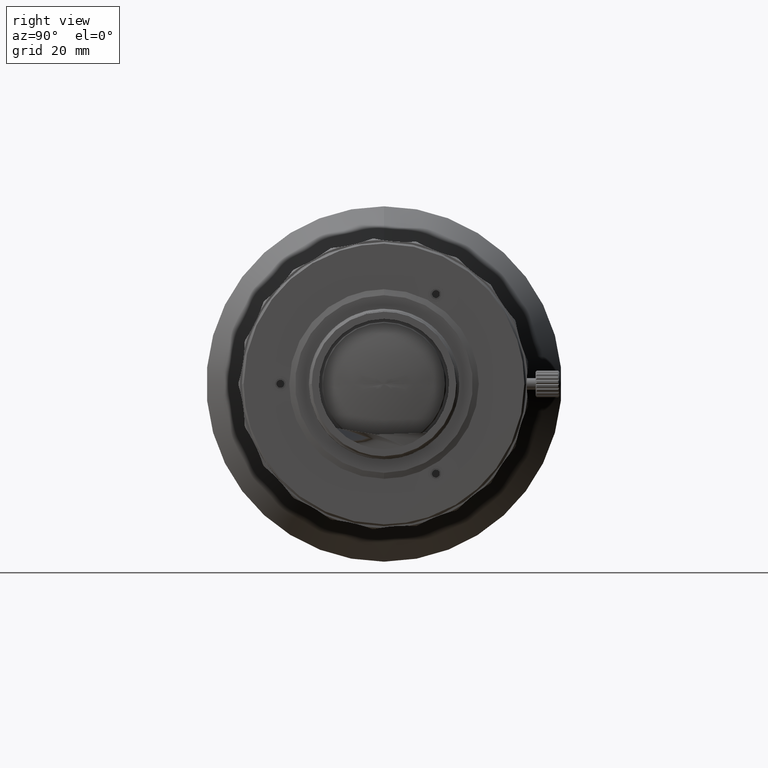
[diagram: clean part render]
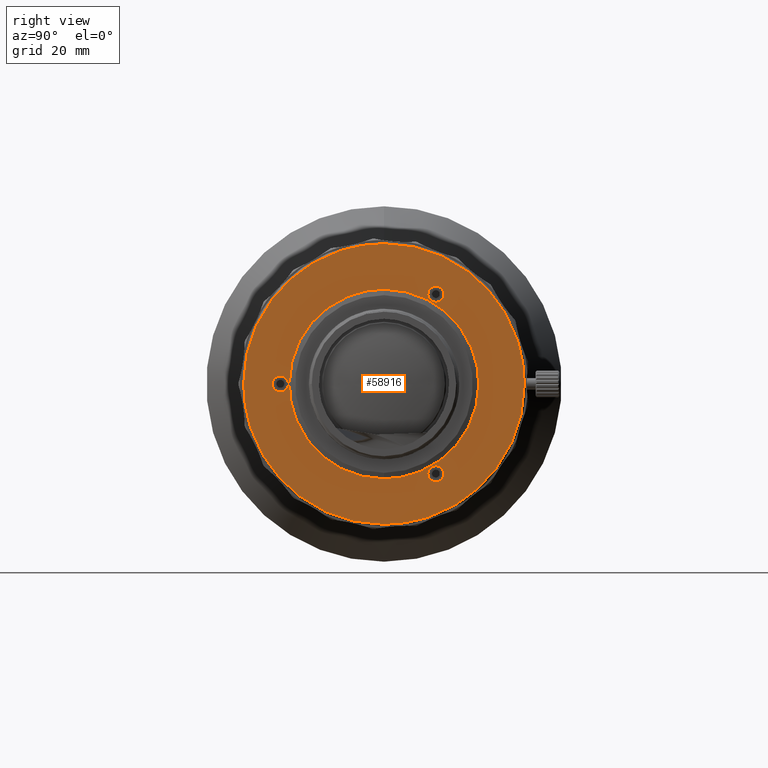
[diagram: same view with one face highlighted and labeled with its STEP entity id]
A machine part, right view. The second image highlights one B-rep face of the part: STEP entity #58916.
In plain terms, the highlighted planar face has unit normal (1, 0, 0).
Its self-contained STEP definition (entity closure, byte-faithful):
#1 = CARTESIAN_POINT ( 'NONE',  ( 76.64069999999998117, 10.09999999999999787, -15.33215915299442678 ) ) ;
#79 = VERTEX_POINT ( 'NONE', #9071 ) ;
#129 = B_SPLINE_CURVE_WITH_KNOTS ( 'NONE', 3,
 ( #59326, #70708, #45392, #12675, #72004, #64586, #37553, #65878, #57593, #17940, #17504, #65457, #25326, #52351, #84632, #84199, #52770, #51052 ),
 .UNSPECIFIED., .F., .F.,
 ( 4, 2, 2, 2, 2, 2, 2, 2, 4 ),
 ( 0.000000000000000000, 0.1250000000000000278, 0.2500000000000000555, 0.3750000000000000000, 0.5000000000000000000, 0.6250000000000000000, 0.7499999999999998890, 0.8750000000000000000, 1.000000000000000000 ),
 .UNSPECIFIED. ) ;
#142 = FACE_OUTER_BOUND ( 'NONE', #11237, .T. ) ;
#283 = CARTESIAN_POINT ( 'NONE',  ( 76.64069999999998117, 9.429885623500716463, 13.97583294195174730 ) ) ;
#284 = CARTESIAN_POINT ( 'NONE',  ( 76.64069999999999538, 8.396640356114975390, 13.84058145272777196 ) ) ;
#436 = EDGE_CURVE ( 'NONE', #75324, #79, #27833, .T. ) ;
#514 = CARTESIAN_POINT ( 'NONE',  ( 76.64069962050291451, 1.551161236633410878, -23.69999792081300782 ) ) ;
#707 = CARTESIAN_POINT ( 'NONE',  ( 76.64070000000000960, 10.06486311350223239, 14.80208492234497619 ) ) ;
#845 = CARTESIAN_POINT ( 'NONE',  ( 76.64069999999999538, 9.579638071966133595, -14.07589432899245807 ) ) ;
#998 = CARTESIAN_POINT ( 'NONE',  ( 76.64069999999762217, -15.99999999999928590, -8.736585125177733838E-16 ) ) ;
#1233 = CARTESIAN_POINT ( 'NONE',  ( 76.64069999999996696, 7.920361928033863741, -14.07589432899245452 ) ) ;
#1328 = CARTESIAN_POINT ( 'NONE',  ( 76.64069999999999538, -2.091423351979704304, 15.89748536936434320 ) ) ;
#1976 = CARTESIAN_POINT ( 'NONE',  ( 76.64069999999996696, 9.429885623500712910, 16.33505619050824365 ) ) ;
#2088 = CARTESIAN_POINT ( 'NONE',  ( 76.64069962050292872, 20.56760709237993723, 11.87726993555570587 ) ) ;
#2517 = CARTESIAN_POINT ( 'NONE',  ( 76.64069962050291451, 11.87726993518950636, 20.56760709259135567 ) ) ;
#2860 = CARTESIAN_POINT ( 'NONE',  ( 76.64069999999998117, 7.093187056990378103, -14.38014184987940425 ) ) ;
#3126 = CARTESIAN_POINT ( 'NONE',  ( 76.64069977230175823, 9.076041367984843545E-13, -23.69999792081178924 ) ) ;
#3349 = B_SPLINE_CURVE_WITH_KNOTS ( 'NONE', 3,
 ( #5821, #85589, #72958, #25865, #80329, #6249, #66406, #32845, #20611, #54146, #59435, #52459, #6658, #7078, #86015, #79481, #79053, #19760 ),
 .UNSPECIFIED., .F., .F.,
 ( 4, 2, 2, 2, 2, 2, 2, 2, 4 ),
 ( 0.000000000000000000, 0.06249999999999994449, 0.1249999999999998890, 0.1874999999999998890, 0.2499999999999998890, 0.3124999999999998890, 0.3749999999999998890, 0.4374999999999999445, 0.5000000000000000000 ),
 .UNSPECIFIED. ) ;
#3497 = ORIENTED_EDGE ( 'NONE', *, *, #5792, .F. ) ;
#3623 = VERTEX_POINT ( 'NONE', #72558 ) ;
#4117 = CARTESIAN_POINT ( 'NONE',  ( 76.64069999999998117, -16.32038837572175893, -0.6798856235007142423 ) ) ;
#4346 = B_SPLINE_CURVE_WITH_KNOTS ( 'NONE', 3,
 ( #6055, #67494, #66224, #60958, #1233, #19994, #7752, #46584, #73186, #13861, #59247, #53523, #34355, #13436, #80995, #21273, #40040, #72345 ),
 .UNSPECIFIED., .F., .F.,
 ( 4, 2, 2, 2, 2, 2, 2, 2, 4 ),
 ( 0.000000000000000000, 0.1249999999999992506, 0.2499999999999985012, 0.3749999999999981681, 0.4999999999999978906, 0.6249999999999975575, 0.7499999999999983347, 0.8749999999999992228, 1.000000000000000000 ),
 .UNSPECIFIED. ) ;
#4696 = CARTESIAN_POINT ( 'NONE',  ( 76.64069962050297136, -11.87726993554476884, 20.56760709238527696 ) ) ;
#4728 = EDGE_LOOP ( 'NONE', ( #61121, #44998 ) ) ;
#5199 = B_SPLINE_CURVE_WITH_KNOTS ( 'NONE', 3,
 ( #7218, #46070, #65694, #5953, #12909, #66550, #7644, #79614, #19046, #45638, #32558, #52597, #59150, #79189, #59995, #284, #26871, #56003 ),
 .UNSPECIFIED., .F., .F.,
 ( 4, 2, 2, 2, 2, 2, 2, 2, 4 ),
 ( 0.000000000000000000, 0.1250000000000000000, 0.2500000000000000000, 0.3750000000000000000, 0.5000000000000000000, 0.6250000000000000000, 0.7500000000000000000, 0.8750000000000000000, 1.000000000000000000 ),
 .UNSPECIFIED. ) ;
#5792 = EDGE_CURVE ( 'NONE', #60762, #20796, #29858, .T. ) ;
#5821 = CARTESIAN_POINT ( 'NONE',  ( 76.64069977230175823, 9.076041367984843545E-13, -23.69999792081178924 ) ) ;
#5953 = CARTESIAN_POINT ( 'NONE',  ( 76.64069999999996696, 8.070114376499281761, 16.33505619050824365 ) ) ;
#5981 = CARTESIAN_POINT ( 'NONE',  ( 76.64069962050299978, -6.144996334755992606, 22.94199256111746266 ) ) ;
#6055 = CARTESIAN_POINT ( 'NONE',  ( 76.64069999999998117, 8.750000000000000000, -13.80544456623000293 ) ) ;
#6249 = CARTESIAN_POINT ( 'NONE',  ( 76.64069962050297136, -10.50268266949943197, -21.30233929342817589 ) ) ;
#6518 = CARTESIAN_POINT ( 'NONE',  ( 76.64069999999996696, 9.579638071966133595, -16.23499480346753643 ) ) ;
#6559 = CARTESIAN_POINT ( 'NONE',  ( 76.64069999999996696, 4.151481038392139666, 15.48771441802423787 ) ) ;
#6658 = CARTESIAN_POINT ( 'NONE',  ( 76.64069962050299978, -21.30233929338141863, -10.50268266959415975 ) ) ;
#6987 = CARTESIAN_POINT ( 'NONE',  ( 76.64069999999996696, 7.093214687431535381, 14.38020855566372269 ) ) ;
#7025 = CARTESIAN_POINT ( 'NONE',  ( 76.64069962050291451, 10.50268266956430452, -21.30233929339708254 ) ) ;
#7078 = CARTESIAN_POINT ( 'NONE',  ( 76.64069962050298557, -22.48954670575617598, -7.636510433316167301 ) ) ;
#7218 = CARTESIAN_POINT ( 'NONE',  ( 76.64069999999998117, 8.750000000000000000, 16.50544456623000045 ) ) ;
#7455 = CARTESIAN_POINT ( 'NONE',  ( 76.64069962050291451, 11.87726993543372167, -20.56760709245044083 ) ) ;
#7516 = CARTESIAN_POINT ( 'NONE',  ( 76.64069999999998117, -10.57107356031753120, -12.05629238325672503 ) ) ;
#7644 = CARTESIAN_POINT ( 'NONE',  ( 76.64069999999998117, 7.570388375721750052, 15.83533018973071549 ) ) ;
#7752 = CARTESIAN_POINT ( 'NONE',  ( 76.64069999999998117, 7.570388375721755381, -14.47555894272928434 ) ) ;
#8693 = CARTESIAN_POINT ( 'NONE',  ( 76.64069999999999538, 12.72001930939987879, 9.762319960774968663 ) ) ;
#9071 = CARTESIAN_POINT ( 'NONE',  ( 76.64069999999800586, 2.714440915294617282E-15, -15.99999999999882050 ) ) ;
#9402 = CARTESIAN_POINT ( 'NONE',  ( 76.64069999999998117, 15.18393648469977286, -5.152655148239585259 ) ) ;
#9782 = CARTESIAN_POINT ( 'NONE',  ( 76.64069999999999538, -16.32038837572176249, 0.6798856235007141313 ) ) ;
#9831 = CARTESIAN_POINT ( 'NONE',  ( 76.64069999999998117, 8.015927495828213623, -13.88700828429151102 ) ) ;
#10665 = B_SPLINE_CURVE_WITH_KNOTS ( 'NONE', 3,
 ( #33832, #80043, #78768, #283, #26870, #20322, #60429, #707, #19045, #45637, #72242, #12481, #39091, #65693, #1976, #27731, #14187, #29432 ),
 .UNSPECIFIED., .F., .F.,
 ( 4, 2, 2, 2, 2, 2, 2, 2, 4 ),
 ( 0.000000000000000000, 0.1249999999999995837, 0.2499999999999991673, 0.3749999999999987788, 0.4999999999999983347, 0.6249999999999978906, 0.7499999999999985567, 0.8749999999999993339, 1.000000000000000000 ),
 .UNSPECIFIED. ) ;
#10780 = CARTESIAN_POINT ( 'NONE',  ( 76.64069962050288609, 14.45675679929066604, 18.84404907324151068 ) ) ;
#11092 = CARTESIAN_POINT ( 'NONE',  ( 76.64069999999999538, -16.42044976276246260, -0.8296380719661353709 ) ) ;
#11234 = CARTESIAN_POINT ( 'NONE',  ( 76.64069962050298557, -23.54722565148761859, 3.102284117623219206 ) ) ;
#11237 = EDGE_LOOP ( 'NONE', ( #43522, #52343, #79739, #3497 ) ) ;
#11515 = CARTESIAN_POINT ( 'NONE',  ( 76.64069999999998117, -17.50000000000000000, -1.350000000000000533 ) ) ;
#12358 = CARTESIAN_POINT ( 'NONE',  ( 76.64069999999998117, -13.88700828429514900, -8.015927495826066007 ) ) ;
#12481 = CARTESIAN_POINT ( 'NONE',  ( 76.64069999999996696, 9.929611624278249948, 15.83533018973070838 ) ) ;
#12675 = CARTESIAN_POINT ( 'NONE',  ( 76.64069999999998117, -18.17988562350072357, 1.179611624278247950 ) ) ;
#12786 = CARTESIAN_POINT ( 'NONE',  ( 76.64069999999999538, -15.89752149548272619, -2.091241766337238239 ) ) ;
#12909 = CARTESIAN_POINT ( 'NONE',  ( 76.64069999999998117, 7.920361928033865517, 16.23499480346754709 ) ) ;
#12937 = CARTESIAN_POINT ( 'NONE',  ( 76.64069962050299978, -20.56760709254356456, 11.87726993527067698 ) ) ;
#13115 = CARTESIAN_POINT ( 'NONE',  ( 76.64069999999999538, -1.050208301228396923, 15.99996389908876715 ) ) ;
#13436 = CARTESIAN_POINT ( 'NONE',  ( 76.64069999999998117, 7.920361928033863741, -16.23499480346753998 ) ) ;
#13538 = CARTESIAN_POINT ( 'NONE',  ( 76.64069999999800586, -3.694158354612427470E-15, 15.99999999999882405 ) ) ;
#13564 = CARTESIAN_POINT ( 'NONE',  ( 76.64069962050291451, 15.66159261482982501, -17.85526587300462964 ) ) ;
#13626 = CARTESIAN_POINT ( 'NONE',  ( 76.64069999999998117, -15.48760747741834187, -4.151648538178417169 ) ) ;
#13861 = CARTESIAN_POINT ( 'NONE',  ( 76.64069999999999538, 7.400000000000003908, -15.33215915299442500 ) ) ;
#13964 = CARTESIAN_POINT ( 'NONE',  ( 76.64069999999998117, -12.05629238326843478, 10.57107356030746992 ) ) ;
#14187 = CARTESIAN_POINT ( 'NONE',  ( 76.64069999999996696, 8.926714586764427750, 16.50544456623000045 ) ) ;
#16751 = CARTESIAN_POINT ( 'NONE',  ( 76.64069999999999538, -16.15000000000000924, 0.1767145867644257240 ) ) ;
#17088 = EDGE_CURVE ( 'NONE', #46199, #75317, #49547, .T. ) ;
#17187 = CARTESIAN_POINT ( 'NONE',  ( 76.64069999999998117, -16.18513688649778715, 0.3533596438850282739 ) ) ;
#17354 = AXIS2_PLACEMENT_3D ( 'NONE', #53292, #79907, #53716 ) ;
#17504 = CARTESIAN_POINT ( 'NONE',  ( 76.64069999999998117, -18.81486311350223417, -0.3533596438850307164 ) ) ;
#17940 = CARTESIAN_POINT ( 'NONE',  ( 76.64069999999998117, -18.85000000000000853, -0.1767145867644281387 ) ) ;
#18912 = CARTESIAN_POINT ( 'NONE',  ( 76.64069999999996696, -4.151481038429954751, -15.48771441801406823 ) ) ;
#19045 = CARTESIAN_POINT ( 'NONE',  ( 76.64070000000000960, 10.10000000000000497, 14.97872997946557660 ) ) ;
#19046 = CARTESIAN_POINT ( 'NONE',  ( 76.64069999999998117, 7.399999999999999467, 15.33215915299442678 ) ) ;
#19307 = ORIENTED_EDGE ( 'NONE', *, *, #67775, .F. ) ;
#19491 = CARTESIAN_POINT ( 'NONE',  ( 76.64069962050298557, -15.66159261490288479, 17.85526587293934142 ) ) ;
#19658 = CARTESIAN_POINT ( 'NONE',  ( 76.64069999999800586, -3.694158354612427470E-15, 15.99999999999882405 ) ) ;
#19664 = B_SPLINE_CURVE_WITH_KNOTS ( 'NONE', 3,
 ( #73807, #79913, #79059, #18912, #20189, #67261, #72117, #46780, #7516, #60729, #59020, #12358, #38969, #73388, #13626, #12786, #27169, #998 ),
 .UNSPECIFIED., .F., .F.,
 ( 4, 2, 2, 2, 2, 2, 2, 2, 4 ),
 ( 0.5000000000000000000, 0.5625000000000000000, 0.6250000000000000000, 0.6875000000000000000, 0.7500000000000000000, 0.8125000000000000000, 0.8750000000000000000, 0.9375000000000000000, 1.000000000000000000 ),
 .UNSPECIFIED. ) ;
#19674 = CARTESIAN_POINT ( 'NONE',  ( 76.64069999999999538, -15.99999999999882405, 1.050389825370369179 ) ) ;
#19760 = CARTESIAN_POINT ( 'NONE',  ( 76.64069981025149048, -23.69999792081289769, -7.890749212146722254E-11 ) ) ;
#19994 = CARTESIAN_POINT ( 'NONE',  ( 76.64069999999998117, 7.670449762762458157, -14.32580649426386366 ) ) ;
#20131 = CARTESIAN_POINT ( 'NONE',  ( 76.64069962050291451, 22.94199256119874875, -6.144996334455904652 ) ) ;
#20189 = CARTESIAN_POINT ( 'NONE',  ( 76.64069999999996696, -5.152655148224465798, -15.18393648471151991 ) ) ;
#20322 = CARTESIAN_POINT ( 'NONE',  ( 76.64069999999998117, 9.829550237237544508, 14.32580649426386543 ) ) ;
#20611 = CARTESIAN_POINT ( 'NONE',  ( 76.64069962050298557, -15.66159261474425790, -17.85526587307859714 ) ) ;
#20760 = VERTEX_POINT ( 'NONE', #3126 ) ;
#20796 = VERTEX_POINT ( 'NONE', #56728 ) ;
#21273 = CARTESIAN_POINT ( 'NONE',  ( 76.64069999999996696, 8.396640356114973613, -16.47030767973221899 ) ) ;
#21640 = CARTESIAN_POINT ( 'NONE',  ( 76.64069999999996696, 4.151466952525894705, -15.48764360353342440 ) ) ;
#21842 = ORIENTED_EDGE ( 'NONE', *, *, #82345, .F. ) ;
#22224 = CARTESIAN_POINT ( 'NONE',  ( 76.64069999999998117, 15.18400319048754454, 5.152682778678371989 ) ) ;
#22564 = CARTESIAN_POINT ( 'NONE',  ( 76.64069962050291451, 23.54722565145358359, 3.102284117888121973 ) ) ;
#23353 = CARTESIAN_POINT ( 'NONE',  ( 76.64069999999996696, 9.762319960797753993, -12.72001930938797365 ) ) ;
#23691 = CARTESIAN_POINT ( 'NONE',  ( 76.64069999999998117, -17.50000000000000000, -1.350000000000000533 ) ) ;
#23725 = CARTESIAN_POINT ( 'NONE',  ( 76.64069999999998117, -16.67036192803387351, -1.079550237237543397 ) ) ;
#25326 = CARTESIAN_POINT ( 'NONE',  ( 76.64069999999998117, -18.57955023723754806, -0.8296380719661370362 ) ) ;
#25608 = CARTESIAN_POINT ( 'NONE',  ( 76.64069962050299978, -17.85526587314806335, 15.66159261466492580 ) ) ;
#25715 = VERTEX_POINT ( 'NONE', #27894 ) ;
#25865 = CARTESIAN_POINT ( 'NONE',  ( 76.64069962050301399, -6.144996334552179640, -22.94199256117217089 ) ) ;
#26647 = CARTESIAN_POINT ( 'NONE',  ( 76.64069999999999538, -12.72007934300088117, 9.762360073986684483 ) ) ;
#26675 = CARTESIAN_POINT ( 'NONE',  ( 76.64069962050291451, 20.56760709252095864, -11.87726993531161490 ) ) ;
#26730 = PLANE ( 'NONE',  #17354 ) ;
#26870 = CARTESIAN_POINT ( 'NONE',  ( 76.64069999999996696, 9.579638071966135371, 14.07589432899245274 ) ) ;
#26871 = CARTESIAN_POINT ( 'NONE',  ( 76.64069999999999538, 8.573285413235579355, 13.80544456622999938 ) ) ;
#27163 = FACE_BOUND ( 'NONE', #53245, .T. ) ;
#27169 = CARTESIAN_POINT ( 'NONE',  ( 76.64069999999998117, -15.99999999999882050, -1.050760048917963596 ) ) ;
#27240 = ORIENTED_EDGE ( 'NONE', *, *, #17088, .F. ) ;
#27731 = CARTESIAN_POINT ( 'NONE',  ( 76.64069999999996696, 9.103359643885029939, 16.47030767973223320 ) ) ;
#27833 = B_SPLINE_CURVE_WITH_KNOTS ( 'NONE', 3,
 ( #74809, #28187, #68273, #49080, #9402, #36008, #49509, #62596, #81358, #34716, #23353, #9831, #2860, #36430, #21640, #29467, #63037, #29904 ),
 .UNSPECIFIED., .F., .F.,
 ( 4, 2, 2, 2, 2, 2, 2, 2, 4 ),
 ( 0.000000000000000000, 0.06250000000000001388, 0.1250000000000000000, 0.1875000000000000000, 0.2500000000000000000, 0.3125000000000000000, 0.3750000000000000000, 0.4375000000000000555, 0.5000000000000000000 ),
 .UNSPECIFIED. ) ;
#27894 = CARTESIAN_POINT ( 'NONE',  ( 76.64069999999998117, 8.750000000000000000, 16.50544456623000045 ) ) ;
#27958 = CARTESIAN_POINT ( 'NONE',  ( 76.64069981025146205, 23.69999792081300427, 1.054667068689506069E-10 ) ) ;
#28187 = CARTESIAN_POINT ( 'NONE',  ( 76.64069999999998117, 15.99999999999882405, -1.050389825386914833 ) ) ;
#29123 = CARTESIAN_POINT ( 'NONE',  ( 76.64069962050291451, 15.66159261461780972, 17.85526587319047209 ) ) ;
#29203 = CARTESIAN_POINT ( 'NONE',  ( 76.64069999999996696, 9.762360073961705353, 12.72007934302087584 ) ) ;
#29348 = CARTESIAN_POINT ( 'NONE',  ( 76.64069999999762217, 15.99999999999928590, 1.175660927181372659E-15 ) ) ;
#29432 = CARTESIAN_POINT ( 'NONE',  ( 76.64069999999998117, 8.750000000000000000, 16.50544456623000045 ) ) ;
#29467 = CARTESIAN_POINT ( 'NONE',  ( 76.64069999999999538, 2.091423351989749602, -15.89748536936765433 ) ) ;
#29858 = B_SPLINE_CURVE_WITH_KNOTS ( 'NONE', 3,
 ( #84900, #86176, #11234, #44364, #37828, #64863, #12937, #33010, #25608, #19491, #64433, #4696, #31725, #52198, #5981, #32583, #78796, #72269 ),
 .UNSPECIFIED., .F., .F.,
 ( 4, 2, 2, 2, 2, 2, 2, 2, 4 ),
 ( 0.5000000000000000000, 0.5625000000000000000, 0.6250000000000000000, 0.6875000000000001110, 0.7500000000000002220, 0.8125000000000001110, 0.8750000000000001110, 0.9375000000000000000, 1.000000000000000000 ),
 .UNSPECIFIED. ) ;
#29904 = CARTESIAN_POINT ( 'NONE',  ( 76.64069999999800586, 2.714440915294617282E-15, -15.99999999999882050 ) ) ;
#30640 = B_SPLINE_CURVE_WITH_KNOTS ( 'NONE', 3,
 ( #19658, #66309, #65466, #6559, #40129, #6987, #81951, #29203, #61046, #74547, #8693, #35732, #35289, #22224, #47955, #34448, #49669, #75829 ),
 .UNSPECIFIED., .F., .F.,
 ( 4, 2, 2, 2, 2, 2, 2, 2, 4 ),
 ( 0.5000000000000000000, 0.5625000000000000000, 0.6250000000000000000, 0.6875000000000000000, 0.7500000000000000000, 0.8125000000000000000, 0.8750000000000000000, 0.9375000000000000000, 1.000000000000000000 ),
 .UNSPECIFIED. ) ;
#31144 = CARTESIAN_POINT ( 'NONE',  ( 76.64069999999998117, -16.82011437649929064, 1.179611624278247728 ) ) ;
#31725 = CARTESIAN_POINT ( 'NONE',  ( 76.64069962050298557, -10.50268266968867970, 21.30233929333475729 ) ) ;
#31913 = EDGE_CURVE ( 'NONE', #66227, #75324, #30640, .T. ) ;
#32558 = CARTESIAN_POINT ( 'NONE',  ( 76.64069999999998117, 7.435136886497772046, 14.80208492234497086 ) ) ;
#32583 = CARTESIAN_POINT ( 'NONE',  ( 76.64069962050301399, -3.102284117937029961, 23.54722565144627922 ) ) ;
#32845 = CARTESIAN_POINT ( 'NONE',  ( 76.64069962050297136, -14.45675679943240510, -18.84404907313187394 ) ) ;
#33010 = CARTESIAN_POINT ( 'NONE',  ( 76.64069962050298557, -18.84404907319598266, 14.45675679934868008 ) ) ;
#33129 = CARTESIAN_POINT ( 'NONE',  ( 76.64069999999998117, 9.929611624278246396, -15.83533018973071549 ) ) ;
#33547 = CARTESIAN_POINT ( 'NONE',  ( 76.64069999999998117, 10.09999999999999787, -14.97872997946557483 ) ) ;
#33570 = EDGE_CURVE ( 'NONE', #82662, #25715, #10665, .T. ) ;
#33832 = CARTESIAN_POINT ( 'NONE',  ( 76.64069999999998117, 8.750000000000000000, 13.80544456622999760 ) ) ;
#34355 = CARTESIAN_POINT ( 'NONE',  ( 76.64069999999996696, 7.670449762762457269, -15.98508263819612552 ) ) ;
#34448 = CARTESIAN_POINT ( 'NONE',  ( 76.64070000000000960, 15.89752149548273330, 2.091241766340544483 ) ) ;
#34464 = CARTESIAN_POINT ( 'NONE',  ( 76.64069999999998117, -7.093187057007577678, 14.38014184987066990 ) ) ;
#34716 = CARTESIAN_POINT ( 'NONE',  ( 76.64069999999998117, 10.57112461471449549, -12.05634343765028049 ) ) ;
#34818 = ORIENTED_EDGE ( 'NONE', *, *, #436, .T. ) ;
#35289 = CARTESIAN_POINT ( 'NONE',  ( 76.64069999999996696, 14.38014184987145150, 7.093187057003621732 ) ) ;
#35647 = CARTESIAN_POINT ( 'NONE',  ( 76.64069962050291451, 22.48954670572904391, 7.636510433398583153 ) ) ;
#35732 = CARTESIAN_POINT ( 'NONE',  ( 76.64069999999998117, 13.88700828427960055, 8.015927495851022044 ) ) ;
#36008 = CARTESIAN_POINT ( 'NONE',  ( 76.64069999999999538, 14.38020855565923384, -7.093214687442388922 ) ) ;
#36084 = CARTESIAN_POINT ( 'NONE',  ( 76.64069962050290030, 21.30233929333471465, 10.50268266969066921 ) ) ;
#36383 = CARTESIAN_POINT ( 'NONE',  ( 76.64069999999999538, -17.14664035611497894, 1.314863113502226177 ) ) ;
#36430 = CARTESIAN_POINT ( 'NONE',  ( 76.64069999999998117, 5.152682778691596077, -15.18400319047961311 ) ) ;
#37553 = CARTESIAN_POINT ( 'NONE',  ( 76.64069999999998117, -18.67961162427825528, 0.6798856235007127990 ) ) ;
#37828 = CARTESIAN_POINT ( 'NONE',  ( 76.64069962050299978, -22.48954670582400794, 7.636510433116254326 ) ) ;
#38124 = CARTESIAN_POINT ( 'NONE',  ( 76.64069999999996696, -16.82011437649928709, -1.179611624278247950 ) ) ;
#38969 = CARTESIAN_POINT ( 'NONE',  ( 76.64069999999996696, -14.38014184986538169, -7.093187057030835518 ) ) ;
#39091 = CARTESIAN_POINT ( 'NONE',  ( 76.64069999999998117, 9.829550237237544508, 15.98508263819613617 ) ) ;
#40040 = CARTESIAN_POINT ( 'NONE',  ( 76.64069999999998117, 8.573285413235574026, -16.50544456623000045 ) ) ;
#40081 = CARTESIAN_POINT ( 'NONE',  ( 76.64069999999998117, 8.750000000000000000, -16.50544456622999689 ) ) ;
#40129 = CARTESIAN_POINT ( 'NONE',  ( 76.64069999999996696, 5.152655148250437911, 15.18393648469527868 ) ) ;
#40143 = CARTESIAN_POINT ( 'NONE',  ( 76.64069999999999538, -15.18393648469707458, 5.152655148242807570 ) ) ;
#40169 = CARTESIAN_POINT ( 'NONE',  ( 76.64069962050291451, 7.636510433265168984, -22.48954670577439430 ) ) ;
#40506 = CARTESIAN_POINT ( 'NONE',  ( 76.64069999999999538, 9.929611624278246396, -14.47555894272928789 ) ) ;
#40710 = VERTEX_POINT ( 'NONE', #52252 ) ;
#41024 = CARTESIAN_POINT ( 'NONE',  ( 76.64069962050291451, 17.85526587309761481, -15.66159261472381559 ) ) ;
#41692 = ORIENTED_EDGE ( 'NONE', *, *, #72999, .T. ) ;
#42623 = CARTESIAN_POINT ( 'NONE',  ( 76.64069977230175823, -1.550536540947162123E-10, 23.69999792081178214 ) ) ;
#42921 = CARTESIAN_POINT ( 'NONE',  ( 76.64069999999999538, -17.32328541323557403, -1.350000000000000311 ) ) ;
#43522 = ORIENTED_EDGE ( 'NONE', *, *, #58895, .F. ) ;
#43523 = CARTESIAN_POINT ( 'NONE',  ( 76.64070000000000960, 8.926714586764427750, -13.80544456623000471 ) ) ;
#43907 = CARTESIAN_POINT ( 'NONE',  ( 76.64069962050290030, 7.636510432998140807, 22.48954670586493876 ) ) ;
#44364 = CARTESIAN_POINT ( 'NONE',  ( 76.64069962050297136, -22.94199256119935271, 6.144996334450250508 ) ) ;
#44998 = ORIENTED_EDGE ( 'NONE', *, *, #33570, .F. ) ;
#45285 = CARTESIAN_POINT ( 'NONE',  ( 76.64069999999998117, 8.750000000000000000, 13.80544456622999760 ) ) ;
#45392 = CARTESIAN_POINT ( 'NONE',  ( 76.64069999999998117, -17.85335964388503172, 1.314863113502225733 ) ) ;
#45637 = CARTESIAN_POINT ( 'NONE',  ( 76.64070000000000960, 10.10000000000000497, 15.33215915299442678 ) ) ;
#45638 = CARTESIAN_POINT ( 'NONE',  ( 76.64069999999999538, 7.399999999999997691, 14.97872997946557483 ) ) ;
#46070 = CARTESIAN_POINT ( 'NONE',  ( 76.64069999999999538, 8.573285413235572250, 16.50544456623000045 ) ) ;
#46199 = VERTEX_POINT ( 'NONE', #47128 ) ;
#46272 = CARTESIAN_POINT ( 'NONE',  ( 76.64069999999999538, -8.015927495834427319, 13.88700828428732770 ) ) ;
#46584 = CARTESIAN_POINT ( 'NONE',  ( 76.64069999999998117, 7.435136886497778264, -14.80208492234496909 ) ) ;
#46774 = FACE_BOUND ( 'NONE', #49875, .T. ) ;
#46780 = CARTESIAN_POINT ( 'NONE',  ( 76.64069999999996696, -9.762360073975017372, -12.72007934301089271 ) ) ;
#47122 = CARTESIAN_POINT ( 'NONE',  ( 76.64069999999998117, -9.762319960791526086, 12.72001930939216585 ) ) ;
#47128 = CARTESIAN_POINT ( 'NONE',  ( 76.64069999999998117, 8.750000000000000000, -16.50544456622999689 ) ) ;
#47569 = CARTESIAN_POINT ( 'NONE',  ( 76.64069962050292872, 23.69999792082220580, -1.551161236492707651 ) ) ;
#47955 = CARTESIAN_POINT ( 'NONE',  ( 76.64069999999998117, 15.48760747741833654, 4.151648538175121139 ) ) ;
#48001 = CARTESIAN_POINT ( 'NONE',  ( 76.64069962050291451, 3.102284117748438153, -23.54722565147200442 ) ) ;
#48730 = CARTESIAN_POINT ( 'NONE',  ( 76.64069962050292872, 1.551161236351999984, 23.69999792083130075 ) ) ;
#48765 = CARTESIAN_POINT ( 'NONE',  ( 76.64069999999998117, 8.750000000000000000, -13.80544456623000293 ) ) ;
#49080 = CARTESIAN_POINT ( 'NONE',  ( 76.64069999999998117, 15.48771441801786430, -4.151481038407524693 ) ) ;
#49154 = CARTESIAN_POINT ( 'NONE',  ( 76.64069962050292872, 23.69999792080380274, 1.551161236773987984 ) ) ;
#49509 = CARTESIAN_POINT ( 'NONE',  ( 76.64069999999996696, 13.88694825066692573, -8.015887382655941806 ) ) ;
#49547 = B_SPLINE_CURVE_WITH_KNOTS ( 'NONE', 3,
 ( #40081, #66263, #54423, #81041, #6518, #73228, #33129, #59717, #1, #33547, #53569, #40506, #60578, #845, #53996, #80613, #43523, #48765 ),
 .UNSPECIFIED., .F., .F.,
 ( 4, 2, 2, 2, 2, 2, 2, 2, 4 ),
 ( 0.000000000000000000, 0.1250000000000006939, 0.2500000000000013878, 0.3750000000000021094, 0.5000000000000016653, 0.6250000000000012212, 0.7500000000000007772, 0.8750000000000004441, 1.000000000000000000 ),
 .UNSPECIFIED. ) ;
#49669 = CARTESIAN_POINT ( 'NONE',  ( 76.64069999999998117, 15.99999999999882405, 1.050760048921265399 ) ) ;
#49875 = EDGE_LOOP ( 'NONE', ( #41692, #50368, #34818, #73551 ) ) ;
#50259 = VERTEX_POINT ( 'NONE', #23691 ) ;
#50368 = ORIENTED_EDGE ( 'NONE', *, *, #31913, .T. ) ;
#50742 = CARTESIAN_POINT ( 'NONE',  ( 76.64069999999999538, -17.14664035611498250, -1.314863113502226399 ) ) ;
#51052 = CARTESIAN_POINT ( 'NONE',  ( 76.64069999999998117, -17.50000000000000000, -1.350000000000000533 ) ) ;
#51510 = EDGE_CURVE ( 'NONE', #79, #3623, #19664, .T. ) ;
#52198 = CARTESIAN_POINT ( 'NONE',  ( 76.64069962050301399, -7.636510433415962140, 22.48954670572224401 ) ) ;
#52252 = CARTESIAN_POINT ( 'NONE',  ( 76.64069999999998117, -17.50000000000000711, 1.350000000000001199 ) ) ;
#52343 = ORIENTED_EDGE ( 'NONE', *, *, #55961, .F. ) ;
#52351 = CARTESIAN_POINT ( 'NONE',  ( 76.64069999999996696, -18.32963807196613715, -1.079550237237544730 ) ) ;
#52459 = CARTESIAN_POINT ( 'NONE',  ( 76.64069962050298557, -20.56760709243804186, -11.87726993545350496 ) ) ;
#52597 = CARTESIAN_POINT ( 'NONE',  ( 76.64069999999999538, 7.570388375721750052, 14.47555894272928256 ) ) ;
#52770 = CARTESIAN_POINT ( 'NONE',  ( 76.64069999999998117, -17.67671458676443308, -1.350000000000000533 ) ) ;
#53245 = EDGE_LOOP ( 'NONE', ( #21842, #19307 ) ) ;
#53292 = CARTESIAN_POINT ( 'NONE',  ( 76.64069999999998117, 24.66487488162000119, 24.64799783764000551 ) ) ;
#53523 = CARTESIAN_POINT ( 'NONE',  ( 76.64069999999999538, 7.570388375721751828, -15.83533018973070838 ) ) ;
#53569 = CARTESIAN_POINT ( 'NONE',  ( 76.64069999999998117, 10.06486311350222529, -14.80208492234497086 ) ) ;
#53716 = DIRECTION ( 'NONE',  ( 0.000000000000000000, -1.000000000000000000, 0.000000000000000000 ) ) ;
#53996 = CARTESIAN_POINT ( 'NONE',  ( 76.64069999999998117, 9.429885623500714686, -13.97583294195175263 ) ) ;
#54146 = CARTESIAN_POINT ( 'NONE',  ( 76.64069962050297136, -17.85526587300892842, -15.66159261482366283 ) ) ;
#54423 = CARTESIAN_POINT ( 'NONE',  ( 76.64069999999998117, 9.103359643885028163, -16.47030767973222609 ) ) ;
#54503 = CARTESIAN_POINT ( 'NONE',  ( 76.64069962050291451, 21.30233929345942556, -10.50268266943783324 ) ) ;
#54939 = CARTESIAN_POINT ( 'NONE',  ( 76.64069962050291451, 14.45675679951441772, -18.84404907306997501 ) ) ;
#55961 = EDGE_CURVE ( 'NONE', #78684, #20760, #65332, .T. ) ;
#56003 = CARTESIAN_POINT ( 'NONE',  ( 76.64069999999998117, 8.750000000000000000, 13.80544456622999760 ) ) ;
#56728 = CARTESIAN_POINT ( 'NONE',  ( 76.64069977230175823, -1.550536540947162123E-10, 23.69999792081178214 ) ) ;
#57593 = CARTESIAN_POINT ( 'NONE',  ( 76.64069999999996696, -18.85000000000000497, 0.1767145867644238921 ) ) ;
#58895 = EDGE_CURVE ( 'NONE', #20760, #60762, #3349, .T. ) ;
#58916 = ADVANCED_FACE ( 'NONE', ( #46774, #60290, #59855, #27163, #142 ), #26730, .T. ) ;
#59020 = CARTESIAN_POINT ( 'NONE',  ( 76.64069999999999538, -12.72001930938435166, -9.762319960799890950 ) ) ;
#59150 = CARTESIAN_POINT ( 'NONE',  ( 76.64069999999998117, 7.670449762762456380, 14.32580649426386188 ) ) ;
#59247 = CARTESIAN_POINT ( 'NONE',  ( 76.64069999999999538, 7.435136886497779152, -15.50880421011502897 ) ) ;
#59326 = CARTESIAN_POINT ( 'NONE',  ( 76.64069999999998117, -17.50000000000000711, 1.350000000000001199 ) ) ;
#59348 = CARTESIAN_POINT ( 'NONE',  ( 76.64069999999995275, -14.38020855566193568, 7.093214687439172828 ) ) ;
#59435 = CARTESIAN_POINT ( 'NONE',  ( 76.64069962050298557, -18.84404907306754851, -14.45675679951620651 ) ) ;
#59717 = CARTESIAN_POINT ( 'NONE',  ( 76.64069999999999538, 10.06486311350222529, -15.50880421011503074 ) ) ;
#59855 = FACE_BOUND ( 'NONE', #4728, .T. ) ;
#59995 = CARTESIAN_POINT ( 'NONE',  ( 76.64069999999998117, 8.070114376499287090, 13.97583294195175085 ) ) ;
#60290 = FACE_BOUND ( 'NONE', #81899, .T. ) ;
#60429 = CARTESIAN_POINT ( 'NONE',  ( 76.64069999999998117, 9.929611624278249948, 14.47555894272928612 ) ) ;
#60550 = B_SPLINE_CURVE_WITH_KNOTS ( 'NONE', 3,
 ( #67173, #19674, #74136, #79823, #40143, #59348, #80240, #26647, #13964, #85935, #47122, #46272, #34464, #73717, #74564, #1328, #13115, #13538 ),
 .UNSPECIFIED., .F., .F.,
 ( 4, 2, 2, 2, 2, 2, 2, 2, 4 ),
 ( 0.000000000000000000, 0.06250000000000000000, 0.1249999999999999861, 0.1875000000000000000, 0.2500000000000000000, 0.3125000000000000000, 0.3750000000000000000, 0.4375000000000000000, 0.5000000000000000000 ),
 .UNSPECIFIED. ) ;
#60578 = CARTESIAN_POINT ( 'NONE',  ( 76.64069999999999538, 9.829550237237544508, -14.32580649426386898 ) ) ;
#60729 = CARTESIAN_POINT ( 'NONE',  ( 76.64069999999999538, -12.05634343765033023, -10.57112461471113640 ) ) ;
#60762 = VERTEX_POINT ( 'NONE', #76447 ) ;
#60958 = CARTESIAN_POINT ( 'NONE',  ( 76.64069999999996696, 8.070114376499290643, -13.97583294195174730 ) ) ;
#61046 = CARTESIAN_POINT ( 'NONE',  ( 76.64069999999998117, 10.57107356032758361, 12.05629238324335439 ) ) ;
#61086 = CARTESIAN_POINT ( 'NONE',  ( 76.64069962050292872, 23.54722565149041813, -3.102284117608641978 ) ) ;
#61121 = ORIENTED_EDGE ( 'NONE', *, *, #73861, .F. ) ;
#61812 = CARTESIAN_POINT ( 'NONE',  ( 76.64069962050291451, 17.85526587291165157, 15.66159261493571186 ) ) ;
#62508 = ORIENTED_EDGE ( 'NONE', *, *, #73420, .F. ) ;
#62596 = CARTESIAN_POINT ( 'NONE',  ( 76.64069999999996696, 12.72007934301256249, -9.762360073970029362 ) ) ;
#63037 = CARTESIAN_POINT ( 'NONE',  ( 76.64069999999998117, 1.050208301258416022, -15.99996389909208361 ) ) ;
#63428 = CARTESIAN_POINT ( 'NONE',  ( 76.64069999999998117, -16.15000000000000568, -0.1767145867644259738 ) ) ;
#63865 = CARTESIAN_POINT ( 'NONE',  ( 76.64069999999999538, -16.67036192803387351, 1.079550237237543397 ) ) ;
#64433 = CARTESIAN_POINT ( 'NONE',  ( 76.64069962050299978, -14.45675679959980897, 18.84404907300332610 ) ) ;
#64586 = CARTESIAN_POINT ( 'NONE',  ( 76.64069999999996696, -18.57955023723754806, 0.8296380719661341496 ) ) ;
#64713 = CARTESIAN_POINT ( 'NONE',  ( 76.64069999999999538, -17.32328541323558113, 1.350000000000000533 ) ) ;
#64863 = CARTESIAN_POINT ( 'NONE',  ( 76.64069962050297136, -21.30233929347471999, 10.50268266940479478 ) ) ;
#65332 = B_SPLINE_CURVE_WITH_KNOTS ( 'NONE', 3,
 ( #27958, #47569, #61086, #20131, #73324, #54503, #26675, #81123, #41024, #13564, #54939, #7455, #7025, #40169, #68048, #48001, #514, #68472 ),
 .UNSPECIFIED., .F., .F.,
 ( 4, 2, 2, 2, 2, 2, 2, 2, 4 ),
 ( 0.5000000000000000000, 0.5625000000000000000, 0.6250000000000000000, 0.6875000000000000000, 0.7500000000000000000, 0.8125000000000000000, 0.8750000000000000000, 0.9375000000000000000, 1.000000000000000000 ),
 .UNSPECIFIED. ) ;
#65457 = CARTESIAN_POINT ( 'NONE',  ( 76.64069999999999538, -18.67961162427826238, -0.6798856235007166848 ) ) ;
#65466 = CARTESIAN_POINT ( 'NONE',  ( 76.64069999999998117, 2.091409266123501975, 15.89741455487682664 ) ) ;
#65693 = CARTESIAN_POINT ( 'NONE',  ( 76.64069999999998117, 9.579638071966135371, 16.23499480346754353 ) ) ;
#65694 = CARTESIAN_POINT ( 'NONE',  ( 76.64069999999999538, 8.396640356114977166, 16.47030767973222964 ) ) ;
#65878 = CARTESIAN_POINT ( 'NONE',  ( 76.64069999999999538, -18.81486311350223772, 0.3533596438850267751 ) ) ;
#66224 = CARTESIAN_POINT ( 'NONE',  ( 76.64069999999998117, 8.396640356114975390, -13.84058145272777374 ) ) ;
#66227 = VERTEX_POINT ( 'NONE', #67268 ) ;
#66263 = CARTESIAN_POINT ( 'NONE',  ( 76.64069999999998117, 8.926714586764424197, -16.50544456622999689 ) ) ;
#66309 = CARTESIAN_POINT ( 'NONE',  ( 76.64069999999999538, 1.050208301228389374, 16.00003610090887918 ) ) ;
#66406 = CARTESIAN_POINT ( 'NONE',  ( 76.64069962050298557, -11.87726993536204922, -20.56760709249091335 ) ) ;
#66550 = CARTESIAN_POINT ( 'NONE',  ( 76.64069999999999538, 7.670449762762459045, 15.98508263819612907 ) ) ;
#66822 = CARTESIAN_POINT ( 'NONE',  ( 76.64069981025146205, 23.69999792081300427, 1.054667068689506069E-10 ) ) ;
#67173 = CARTESIAN_POINT ( 'NONE',  ( 76.64069999999762217, -15.99999999999928590, -8.736585125177733838E-16 ) ) ;
#67261 = CARTESIAN_POINT ( 'NONE',  ( 76.64069999999996696, -7.093214687457487067, -14.38020855564748679 ) ) ;
#67268 = CARTESIAN_POINT ( 'NONE',  ( 76.64069999999800586, -3.694158354612427470E-15, 15.99999999999882405 ) ) ;
#67494 = CARTESIAN_POINT ( 'NONE',  ( 76.64069999999995275, 8.573285413235570473, -13.80544456622999760 ) ) ;
#67775 = EDGE_CURVE ( 'NONE', #50259, #40710, #68848, .T. ) ;
#68048 = CARTESIAN_POINT ( 'NONE',  ( 76.64069962050291451, 6.144996334592109477, -22.94199256116225882 ) ) ;
#68273 = CARTESIAN_POINT ( 'NONE',  ( 76.64069999999999538, 15.89741455488320376, -2.091409266108110732 ) ) ;
#68472 = CARTESIAN_POINT ( 'NONE',  ( 76.64069977230175823, 9.076041367984843545E-13, -23.69999792081178924 ) ) ;
#68790 = CARTESIAN_POINT ( 'NONE',  ( 76.64069962050292872, 18.84404907298415210, 14.45675679962617366 ) ) ;
#68848 = B_SPLINE_CURVE_WITH_KNOTS ( 'NONE', 3,
 ( #11515, #42921, #50742, #38124, #23725, #11092, #4117, #69533, #63428, #16751, #17187, #9782, #76485, #63865, #31144, #36383, #64713, #83038 ),
 .UNSPECIFIED., .F., .F.,
 ( 4, 2, 2, 2, 2, 2, 2, 2, 4 ),
 ( 0.000000000000000000, 0.1250000000000000000, 0.2500000000000000000, 0.3750000000000000000, 0.5000000000000000000, 0.6250000000000000000, 0.7500000000000000000, 0.8750000000000000000, 1.000000000000000000 ),
 .UNSPECIFIED. ) ;
#69235 = CARTESIAN_POINT ( 'NONE',  ( 76.64069962050291451, 22.94199256112579022, 6.144996334728197951 ) ) ;
#69533 = CARTESIAN_POINT ( 'NONE',  ( 76.64069999999999538, -16.18513688649777649, -0.3533596438850283294 ) ) ;
#70526 = CARTESIAN_POINT ( 'NONE',  ( 76.64069962050288609, 10.50268266931136907, 21.30233929352165489 ) ) ;
#70708 = CARTESIAN_POINT ( 'NONE',  ( 76.64069999999998117, -17.67671458676443308, 1.350000000000000311 ) ) ;
#72004 = CARTESIAN_POINT ( 'NONE',  ( 76.64069999999996696, -18.32963807196614070, 1.079550237237542731 ) ) ;
#72117 = CARTESIAN_POINT ( 'NONE',  ( 76.64069999999998117, -8.015887382650955573, -13.88694825066860794 ) ) ;
#72242 = CARTESIAN_POINT ( 'NONE',  ( 76.64069999999998117, 10.06486311350222884, 15.50880421011502719 ) ) ;
#72269 = CARTESIAN_POINT ( 'NONE',  ( 76.64069977230175823, -1.550536540947162123E-10, 23.69999792081178214 ) ) ;
#72345 = CARTESIAN_POINT ( 'NONE',  ( 76.64069999999998117, 8.750000000000000000, -16.50544456622999689 ) ) ;
#72558 = CARTESIAN_POINT ( 'NONE',  ( 76.64069999999762217, -15.99999999999928590, -8.736585125177733838E-16 ) ) ;
#72958 = CARTESIAN_POINT ( 'NONE',  ( 76.64069962050298557, -3.102284117727839519, -23.54722565147394420 ) ) ;
#72999 = EDGE_CURVE ( 'NONE', #3623, #66227, #60550, .T. ) ;
#73186 = CARTESIAN_POINT ( 'NONE',  ( 76.64069999999999538, 7.400000000000003020, -14.97872997946557838 ) ) ;
#73228 = CARTESIAN_POINT ( 'NONE',  ( 76.64069999999999538, 9.829550237237540955, -15.98508263819613262 ) ) ;
#73324 = CARTESIAN_POINT ( 'NONE',  ( 76.64069962050291451, 22.48954670581972337, -7.636510433131656228 ) ) ;
#73388 = CARTESIAN_POINT ( 'NONE',  ( 76.64070000000000960, -15.18400319049362679, -5.152682778651128892 ) ) ;
#73420 = EDGE_CURVE ( 'NONE', #75317, #46199, #4346, .T. ) ;
#73551 = ORIENTED_EDGE ( 'NONE', *, *, #51510, .T. ) ;
#73717 = CARTESIAN_POINT ( 'NONE',  ( 76.64069999999999538, -5.152682778674409825, 15.18400319048833325 ) ) ;
#73807 = CARTESIAN_POINT ( 'NONE',  ( 76.64069999999800586, 2.714440915294617282E-15, -15.99999999999882050 ) ) ;
#73861 = EDGE_CURVE ( 'NONE', #25715, #82662, #5199, .T. ) ;
#74136 = CARTESIAN_POINT ( 'NONE',  ( 76.64069999999999538, -15.89741455487559563, 2.091409266129804045 ) ) ;
#74547 = CARTESIAN_POINT ( 'NONE',  ( 76.64069999999999538, 12.05634343764024763, 10.57112461472453191 ) ) ;
#74564 = CARTESIAN_POINT ( 'NONE',  ( 76.64069999999998117, -4.151466952535959543, 15.48764360353672842 ) ) ;
#74809 = CARTESIAN_POINT ( 'NONE',  ( 76.64069999999762217, 15.99999999999928590, 1.175660927181372659E-15 ) ) ;
#75317 = VERTEX_POINT ( 'NONE', #75546 ) ;
#75324 = VERTEX_POINT ( 'NONE', #29348 ) ;
#75546 = CARTESIAN_POINT ( 'NONE',  ( 76.64069999999998117, 8.750000000000000000, -13.80544456623000293 ) ) ;
#75753 = CARTESIAN_POINT ( 'NONE',  ( 76.64069981025146205, 23.69999792081300427, 1.054667068689506069E-10 ) ) ;
#75829 = CARTESIAN_POINT ( 'NONE',  ( 76.64069999999762217, 15.99999999999928590, 1.175660927181372659E-15 ) ) ;
#76447 = CARTESIAN_POINT ( 'NONE',  ( 76.64069981025149048, -23.69999792081289769, -7.890749212146722254E-11 ) ) ;
#76485 = CARTESIAN_POINT ( 'NONE',  ( 76.64069999999998117, -16.42044976276246260, 0.8296380719661350378 ) ) ;
#78684 = VERTEX_POINT ( 'NONE', #66822 ) ;
#78768 = CARTESIAN_POINT ( 'NONE',  ( 76.64069999999998117, 9.103359643885029939, 13.84058145272776841 ) ) ;
#78796 = CARTESIAN_POINT ( 'NONE',  ( 76.64069962050301399, -1.551161236833603629, 23.69999792079903855 ) ) ;
#79053 = CARTESIAN_POINT ( 'NONE',  ( 76.64069962050299978, -23.69999792080592016, -1.551161236728426873 ) ) ;
#79059 = CARTESIAN_POINT ( 'NONE',  ( 76.64069999999998117, -2.091409266085682006, -15.89741455488701405 ) ) ;
#79189 = CARTESIAN_POINT ( 'NONE',  ( 76.64069999999999538, 7.920361928033867294, 14.07589432899245097 ) ) ;
#79481 = CARTESIAN_POINT ( 'NONE',  ( 76.64069962050297136, -23.54722565146005309, -3.102284117832524668 ) ) ;
#79614 = CARTESIAN_POINT ( 'NONE',  ( 76.64069999999999538, 7.435136886497773823, 15.50880421011502541 ) ) ;
#79739 = ORIENTED_EDGE ( 'NONE', *, *, #85042, .F. ) ;
#79823 = CARTESIAN_POINT ( 'NONE',  ( 76.64069999999998117, -15.48771441802548310, 4.151481038385846034 ) ) ;
#79907 = DIRECTION ( 'NONE',  ( 1.000000000000000000, 0.000000000000000000, 0.000000000000000000 ) ) ;
#79913 = CARTESIAN_POINT ( 'NONE',  ( 76.64069999999999538, -1.050208301258409138, -16.00003610090556094 ) ) ;
#80043 = CARTESIAN_POINT ( 'NONE',  ( 76.64069999999998117, 8.926714586764429527, 13.80544456622999583 ) ) ;
#80240 = CARTESIAN_POINT ( 'NONE',  ( 76.64069999999996696, -13.88694825067861238, 8.015887382639270697 ) ) ;
#80329 = CARTESIAN_POINT ( 'NONE',  ( 76.64069962050299978, -7.636510433216169957, -22.48954670579020743 ) ) ;
#80481 = B_SPLINE_CURVE_WITH_KNOTS ( 'NONE', 3,
 ( #42623, #48730, #82736, #83168, #43907, #70526, #2517, #10780, #29123, #61812, #68790, #2088, #36084, #35647, #69235, #22564, #49154, #75753 ),
 .UNSPECIFIED., .F., .F.,
 ( 4, 2, 2, 2, 2, 2, 2, 2, 4 ),
 ( 0.000000000000000000, 0.06250000000000002776, 0.1250000000000000278, 0.1875000000000000278, 0.2500000000000000000, 0.3125000000000000000, 0.3750000000000000555, 0.4375000000000000555, 0.5000000000000000000 ),
 .UNSPECIFIED. ) ;
#80613 = CARTESIAN_POINT ( 'NONE',  ( 76.64069999999999538, 9.103359643885031716, -13.84058145272778084 ) ) ;
#80995 = CARTESIAN_POINT ( 'NONE',  ( 76.64069999999998117, 8.070114376499288866, -16.33505619050824720 ) ) ;
#81041 = CARTESIAN_POINT ( 'NONE',  ( 76.64069999999996696, 9.429885623500711134, -16.33505619050824009 ) ) ;
#81123 = CARTESIAN_POINT ( 'NONE',  ( 76.64069962050291451, 18.84404907315580147, -14.45675679940254277 ) ) ;
#81358 = CARTESIAN_POINT ( 'NONE',  ( 76.64069999999996696, 12.05629238325336239, -10.57107356031757917 ) ) ;
#81899 = EDGE_LOOP ( 'NONE', ( #62508, #27240 ) ) ;
#81951 = CARTESIAN_POINT ( 'NONE',  ( 76.64069999999998117, 8.015887382664246275, 13.88694825065862481 ) ) ;
#82345 = EDGE_CURVE ( 'NONE', #40710, #50259, #129, .T. ) ;
#82662 = VERTEX_POINT ( 'NONE', #45285 ) ;
#82736 = CARTESIAN_POINT ( 'NONE',  ( 76.64069962050291451, 3.102284117468852909, 23.54722565150871816 ) ) ;
#83038 = CARTESIAN_POINT ( 'NONE',  ( 76.64069999999998117, -17.50000000000000711, 1.350000000000001199 ) ) ;
#83168 = CARTESIAN_POINT ( 'NONE',  ( 76.64069962050291451, 6.144996334319707820, 22.94199256123510722 ) ) ;
#84199 = CARTESIAN_POINT ( 'NONE',  ( 76.64069999999998117, -17.85335964388503172, -1.314863113502227288 ) ) ;
#84632 = CARTESIAN_POINT ( 'NONE',  ( 76.64069999999996696, -18.17988562350071291, -1.179611624278250170 ) ) ;
#84900 = CARTESIAN_POINT ( 'NONE',  ( 76.64069981025149048, -23.69999792081289769, -7.890749212146722254E-11 ) ) ;
#85042 = EDGE_CURVE ( 'NONE', #20796, #78684, #80481, .T. ) ;
#85589 = CARTESIAN_POINT ( 'NONE',  ( 76.64069962050299978, -1.551161236623059825, -23.69999792081293677 ) ) ;
#85935 = CARTESIAN_POINT ( 'NONE',  ( 76.64069999999999538, -10.57112461469942311, 12.05634343766038441 ) ) ;
#86015 = CARTESIAN_POINT ( 'NONE',  ( 76.64069962050299978, -22.94199256114476171, -6.144996334654180714 ) ) ;
#86176 = CARTESIAN_POINT ( 'NONE',  ( 76.64069962050298557, -23.69999792081970824, 1.551161236517761832 ) ) ;